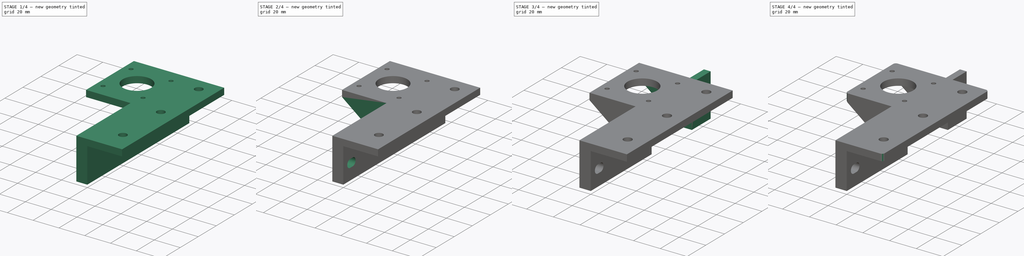
[diagram: build sequence overview — one tinted view per stage of 4, left to right]
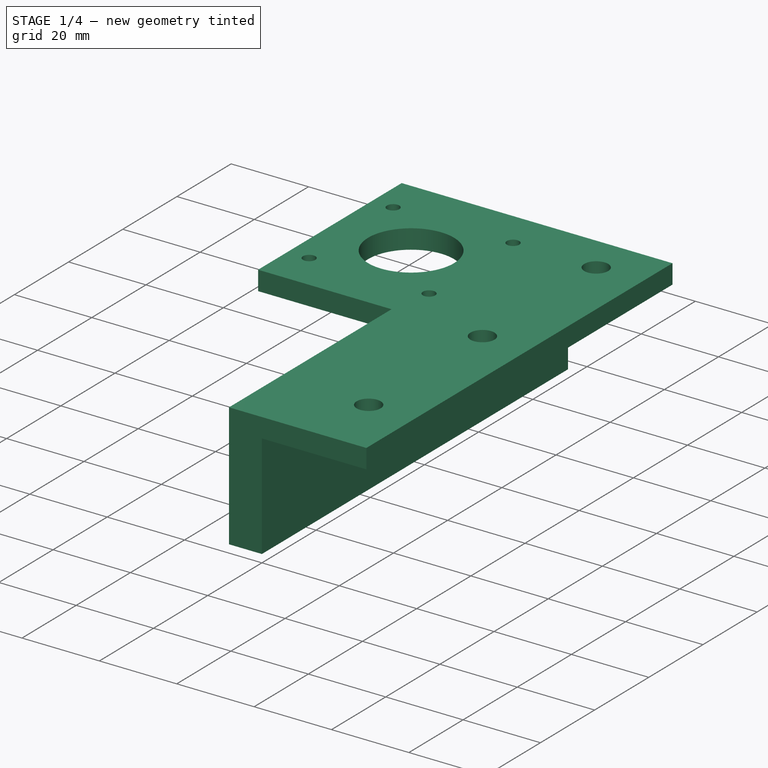
[diagram: stage 1 of 4 — iso view after this stage's code; geometry added in this stage tinted green]
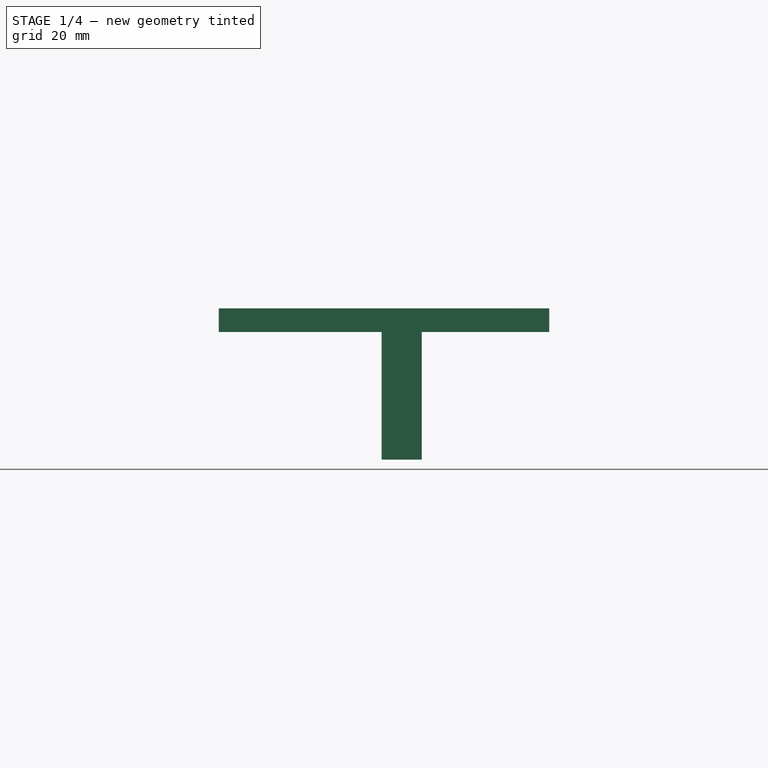
[diagram: stage 1 of 4 — front view after this stage's code; geometry added in this stage tinted green]
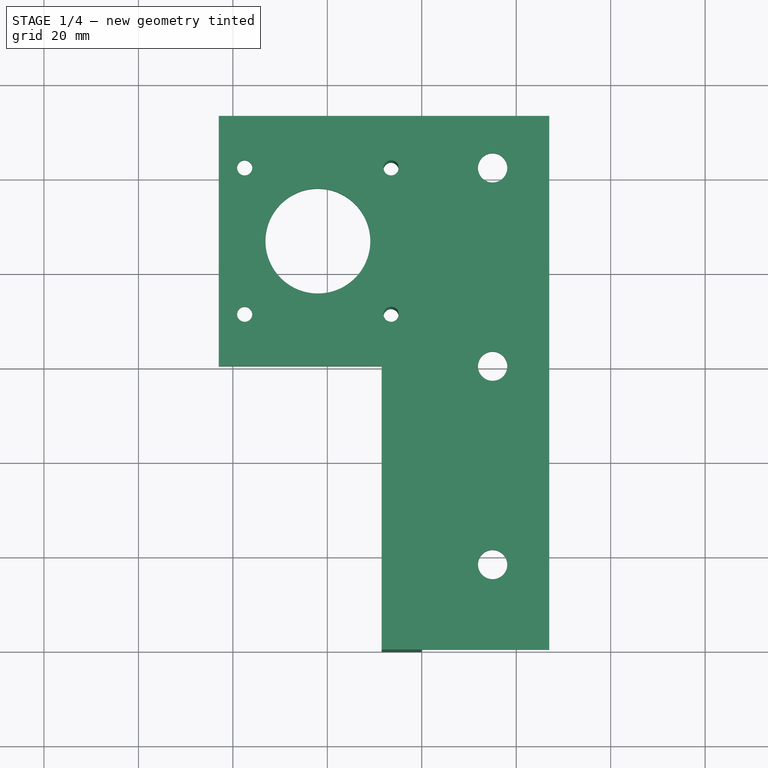
[diagram: stage 1 of 4 — top view after this stage's code; geometry added in this stage tinted green]
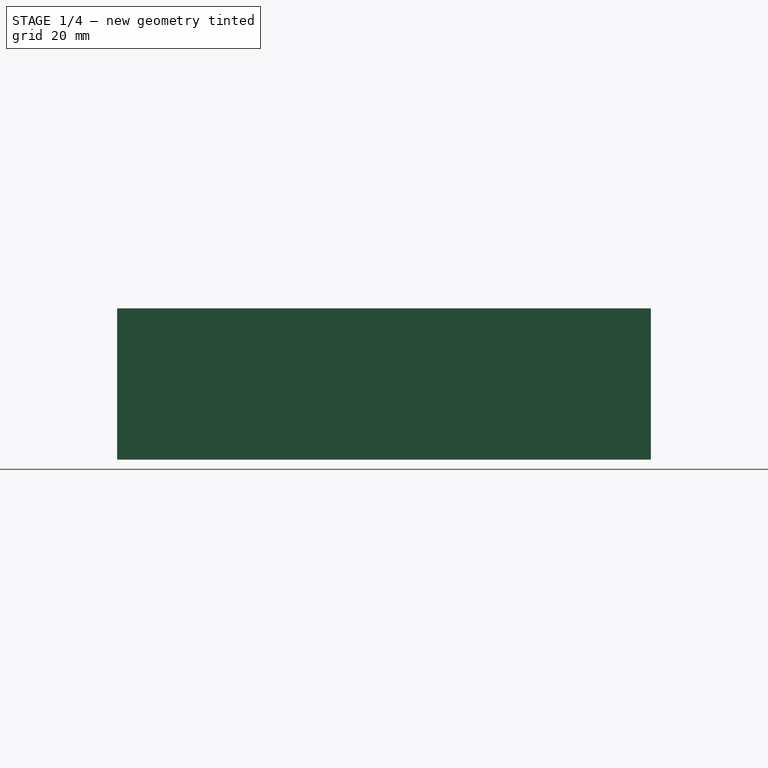
[diagram: stage 1 of 4 — right view after this stage's code; geometry added in this stage tinted green]
FCSTD DOCUMENT  (FreeCAD 0.19R18353 (Git))
Label: GearHolder_003
License: CreativeCommons Attribution
LicenseURL: http://creativecommons.org/licenses/by/4.0/
objects: Sketcher::SketchObject×8, PartDesign::Pad×4, PartDesign::Pocket×4, PartDesign::Fillet×1, PartDesign::Body×1
note: 26 computed .brp shape members not serialized (recipe doc carries the construction recipe); baked Part::Feature solids carry a one-line shape summary decoded from their .brp

FEATURE [Sketcher::SketchObject] Sketch
  MapMode = 5
  Placement = pos=(0,0,0) rot=(1,0,0;1.5708rad)
  Support = -> [XZ_Plane]
  sketch-geometry (8):
    g0: LineSegment StartX=-43 StartY=5 StartZ=0 EndX=27 EndY=5 EndZ=0
    g1: LineSegment StartX=27 StartY=5 StartZ=0 EndX=27 EndY=0 EndZ=0
    g2: LineSegment StartX=27 StartY=0 StartZ=0 EndX=0 EndY=0 EndZ=0
    g3: LineSegment StartX=0 StartY=0 StartZ=0 EndX=0 EndY=-27 EndZ=0
    g4: LineSegment StartX=0 StartY=-27 StartZ=0 EndX=-8.5 EndY=-27 EndZ=0
    g5: LineSegment StartX=-8.5 StartY=-27 StartZ=0 EndX=-8.5 EndY=0 EndZ=0
    g6: LineSegment StartX=-8.5 StartY=0 StartZ=0 EndX=-43 EndY=0 EndZ=0
    g7: LineSegment StartX=-43 StartY=0 StartZ=0 EndX=-43 EndY=5 EndZ=0
  constraints (23):
    c: Horizontal(g0)
    c: Coincident(g0,g1)
    c: Coincident(g1,g2)
    c: Horizontal(g2)
    c: Coincident(g2,g3)
    c: Coincident(g3,g4)
    c: Horizontal(g4)
    c: Coincident(g4,g5)
    c: Vertical(g5)
    c: Coincident(g5,g6)
    c: Horizontal(g6)
    c: Coincident(g6,g7)
    c: Vertical(g7)
    c: Coincident(g7,g0)
    c: Vertical(g1)
    c: Vertical(g3)
    c: Horizontal(g2,g5)
    c: Equal(g3,g2)
    c: Coincident(g2,g-1)
    c: DistanceX(g2,g1) = 27
    c: DistanceX(g6,g2) = 43
    c: DistanceX(g5,g2) = 8.5
    c: DistanceY(g1,g0) = 5
FEATURE [PartDesign::Pad] Pad
  Length = 60
  Length2 = 53
  Placement = pos=(0,0,0) rot=(1,0,0;1.5708rad)
  Profile = -> Sketch
  Refine = true
  Type = 4
  expr: Length2 = 5 + 43 + 5
  expr: Length = 55 + 5
FEATURE [Sketcher::SketchObject] Sketch001
  ExternalGeometry = -> [Pad]
  MapMode = 5
  Support = -> [XY_Plane]
  expr: Constraints[2] = 5 + 43 / 2
  sketch-geometry (16):
    g0: Circle CenterX=-22 CenterY=26.5 CenterZ=0 NormalX=0 NormalY=0 NormalZ=1 AngleXU=0 Radius=11.1
    g1: LineSegment StartX=-43 StartY=0 StartZ=0 EndX=-8.5 EndY=0 EndZ=0
    g2: LineSegment StartX=-8.5 StartY=0 StartZ=0 EndX=-8.5 EndY=-60 EndZ=0
    g3: LineSegment StartX=-8.5 StartY=-60 StartZ=0 EndX=-43 EndY=-60 EndZ=0
    g4: LineSegment StartX=-43 StartY=-60 StartZ=0 EndX=-43 EndY=0 EndZ=0
    g5: Circle CenterX=15 CenterY=42 CenterZ=0 NormalX=0 NormalY=0 NormalZ=1 AngleXU=0 Radius=3.1
    g6: Circle CenterX=15 CenterY=-42 CenterZ=0 NormalX=0 NormalY=0 NormalZ=1 AngleXU=0 Radius=3.1
    g7: Circle CenterX=15 CenterY=-7e-16 CenterZ=0 NormalX=0 NormalY=0 NormalZ=1 AngleXU=0 Radius=3.1
    g8: LineSegment [constr] StartX=-37.5 StartY=42 StartZ=0 EndX=-6.5 EndY=42 EndZ=0
    g9: LineSegment [constr] StartX=-6.5 StartY=42 StartZ=0 EndX=-6.5 EndY=11 EndZ=0
    g10: LineSegment [constr] StartX=-6.5 StartY=11 StartZ=0 EndX=-37.5 EndY=11 EndZ=0
    g11: LineSegment [constr] StartX=-37.5 StartY=11 StartZ=0 EndX=-37.5 EndY=42 EndZ=0
    g12: Circle CenterX=-37.5 CenterY=42 CenterZ=0 NormalX=0 NormalY=0 NormalZ=1 AngleXU=0 Radius=1.6
    g13: Circle CenterX=-6.5 CenterY=42 CenterZ=0 NormalX=0 NormalY=0 NormalZ=1 AngleXU=0 Radius=1.6
    g14: Circle CenterX=-6.5 CenterY=11 CenterZ=0 NormalX=0 NormalY=0 NormalZ=1 AngleXU=0 Radius=1.6
    g15: Circle CenterX=-37.5 CenterY=11 CenterZ=0 NormalX=0 NormalY=0 NormalZ=1 AngleXU=0 Radius=1.6
  constraints (39):
    c: DistanceX(g0,g-1) = 22
    c: Diameter(g0) = 22.2
    c: DistanceY(g-1,g0) = 26.5
    c: Coincident(g1,g2)
    c: Coincident(g2,g3)
    c: Coincident(g3,g4)
    c: Coincident(g4,g1)
    c: Horizontal(g1)
    c: Vertical(g2)
    c: Vertical(g4)
    c: Coincident(g-4,g2)
    c: PointOnObject(g1,g-1)
    c: Coincident(g3,g-3)
    c: Symmetric(g6,g5,g-1)
    c: Diameter(g6) = 6.2
    c: Equal(g6,g5)
    c: Equal(g7,g6)
    c: Symmetric(g5,g6,g7)
    c: DistanceX(g-1,g7) = 15
    c: Coincident(g8,g9)
    c: Coincident(g9,g10)
    c: Coincident(g10,g11)
    c: Coincident(g11,g8)
    c: Horizontal(g8)
    c: Horizontal(g10)
    c: Vertical(g9)
    c: Vertical(g11)
    c: Equal(g9,g8)
    c: DistanceX(g8,g8) = 31
    c: Symmetric(g8,g9,g0)
    c: Equal(g12,g15)
    c: Equal(g15,g14)
    c: Equal(g14,g13)
    c: Diameter(g12) = 3.2
    c: Coincident(g12,g8)
    c: Coincident(g13,g8)
    c: Coincident(g14,g9)
    c: Coincident(g15,g10)
    c: Horizontal(g5,g13)
FEATURE [PartDesign::Pocket] Pocket
  BaseFeature = -> Pad
  Length = 5
  Length2 = 100
  Midplane = true
  Placement = pos=(0,0,0) rot=(1,0,0;1.5708rad)
  Profile = -> Sketch001
  Refine = true
  Type = 1
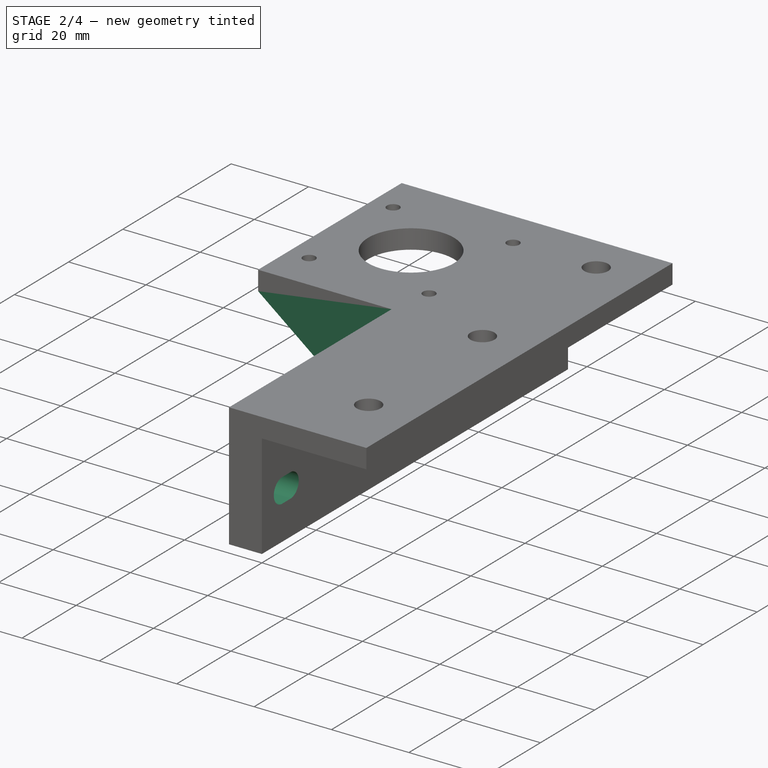
[diagram: stage 2 of 4 — iso view after this stage's code; geometry added in this stage tinted green]
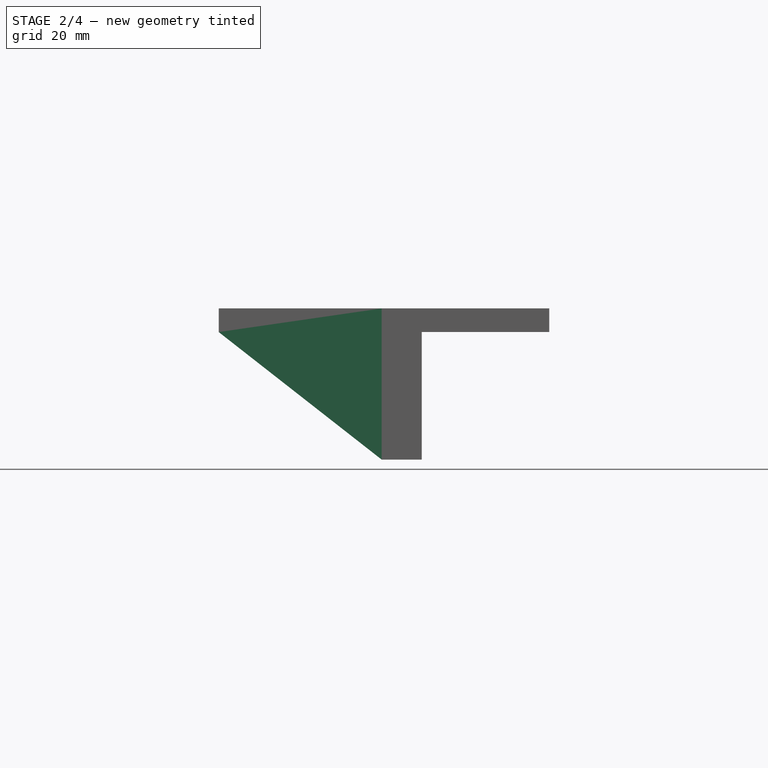
[diagram: stage 2 of 4 — front view after this stage's code; geometry added in this stage tinted green]
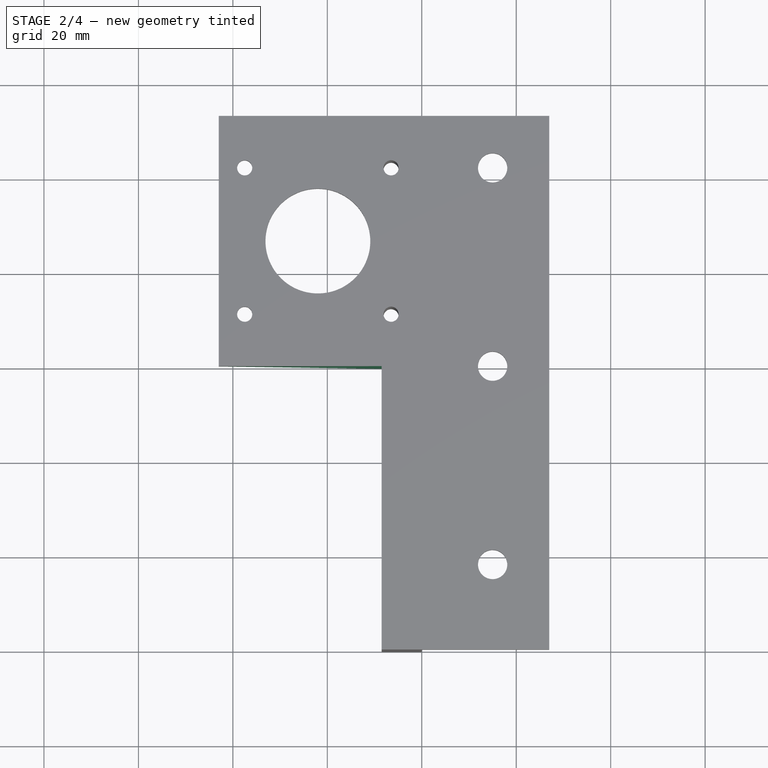
[diagram: stage 2 of 4 — top view after this stage's code; geometry added in this stage tinted green]
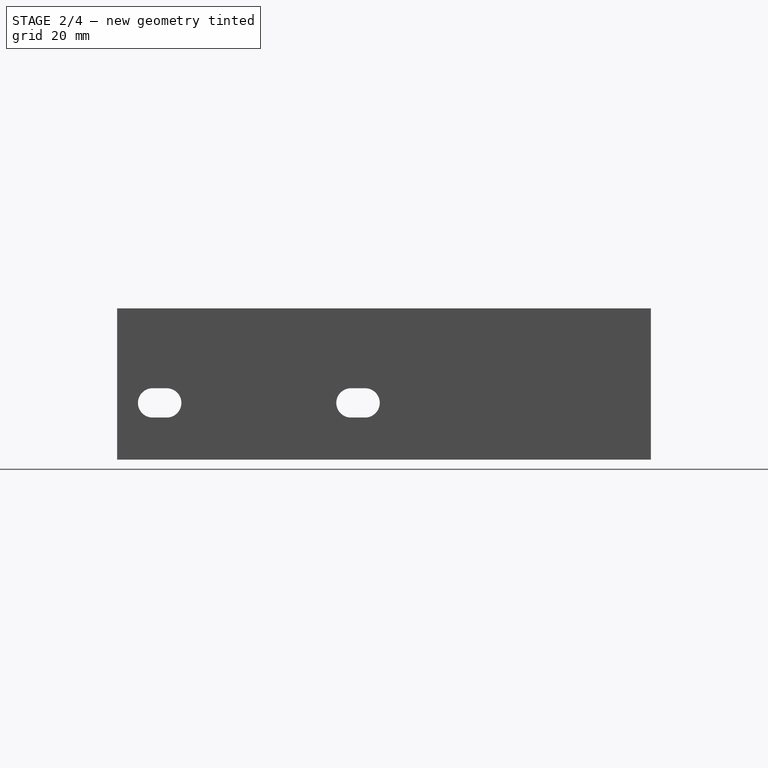
[diagram: stage 2 of 4 — right view after this stage's code; geometry added in this stage tinted green]
FEATURE [Sketcher::SketchObject] Sketch002
  MapMode = 5
  Placement = pos=(0,0,0) rot=(0.57735,0.57735,0.57735;2.0944rad)
  Support = -> [YZ_Plane]
  expr: Constraints[0] = 60 / 2
  sketch-geometry (11):
    g0: GeomPoint X=-30 Y=-15 Z=0
    g1: ArcOfCircle CenterX=-52.5 CenterY=-15 CenterZ=0 NormalX=0 NormalY=0 NormalZ=1 AngleXU=0 Radius=3.1 StartAngle=1.5708 EndAngle=4.71239
    g2: ArcOfCircle CenterX=-49.5 CenterY=-15 CenterZ=0 NormalX=0 NormalY=0 NormalZ=1 AngleXU=0 Radius=3.1 StartAngle=4.71239 EndAngle=7.85398
    g3: LineSegment StartX=-52.5 StartY=-18.1 StartZ=0 EndX=-49.5 EndY=-18.1 EndZ=0
    g4: LineSegment StartX=-52.5 StartY=-11.9 StartZ=0 EndX=-49.5 EndY=-11.9 EndZ=0
    g5: ArcOfCircle CenterX=-10.5 CenterY=-15 CenterZ=0 NormalX=0 NormalY=0 NormalZ=1 AngleXU=0 Radius=3.1 StartAngle=1.5708 EndAngle=4.71239
    g6: ArcOfCircle CenterX=-7.5 CenterY=-15 CenterZ=0 NormalX=0 NormalY=0 NormalZ=1 AngleXU=0 Radius=3.1 StartAngle=4.71239 EndAngle=7.85398
    g7: LineSegment StartX=-10.5 StartY=-18.1 StartZ=0 EndX=-7.5 EndY=-18.1 EndZ=0
    g8: LineSegment StartX=-10.5 StartY=-11.9 StartZ=0 EndX=-7.5 EndY=-11.9 EndZ=0
    g9: GeomPoint X=-9 Y=-15 Z=0
    g10: GeomPoint X=-51 Y=-15 Z=0
  constraints (23):
    c: DistanceX(g0,g-1) = 30
    c: DistanceY(g0,g-1) = 15
    c: Tangent(g1,g4) = 1.5708
    c: Tangent(g1,g3) = -1.5708
    c: Tangent(g3,g2) = -1.5708
    c: Tangent(g4,g2) = 1.5708
    c: Horizontal(g3)
    c: Equal(g1,g2)
    c: Tangent(g5,g8) = 1.5708
    c: Tangent(g5,g7) = -1.5708
    c: Tangent(g7,g6) = -1.5708
    c: Tangent(g8,g6) = 1.5708
    c: Horizontal(g7)
    c: Equal(g5,g6)
    c: Equal(g2,g6)
    c: Diameter(g2) = 6.2
    c: DistanceX(g5,g6) = 3
    c: DistanceX(g1,g2) = 3
    c: Symmetric(g2,g1,g10)
    c: Symmetric(g5,g6,g9)
    c: Symmetric(g9,g10,g0)
    c: Horizontal(g10,g9)
    c: DistanceX(g10,g9) = 42
FEATURE [PartDesign::Pocket] Pocket001
  BaseFeature = -> Pocket
  Length = 5
  Length2 = 100
  Placement = pos=(0,0,0) rot=(1,0,0;1.5708rad)
  Profile = -> Sketch002
  Refine = true
  Type = 1
FEATURE [Sketcher::SketchObject] Sketch003
  ExternalGeometry = -> [Pocket001]
  MapMode = 5
  Placement = pos=(0,0,0) rot=(1,0,0;1.5708rad)
  Support = -> [XZ_Plane]
  sketch-geometry (5):
    g0: LineSegment StartX=-43 StartY=5 StartZ=0 EndX=-43 EndY=0 EndZ=0
    g1: LineSegment StartX=-43 StartY=0 StartZ=0 EndX=-8.5 EndY=-27 EndZ=0
    g2: LineSegment StartX=-8.5 StartY=-27 StartZ=0 EndX=0 EndY=-27 EndZ=0
    g3: LineSegment StartX=0 StartY=-27 StartZ=0 EndX=0 EndY=5 EndZ=0
    g4: LineSegment StartX=0 StartY=5 StartZ=0 EndX=-43 EndY=5 EndZ=0
  constraints (7):
    c: Coincident(g0,g1)
    c: Coincident(g1,g2)
    c: Coincident(g2,g3)
    c: Vertical(g3)
    c: Coincident(g3,g4)
    c: Horizontal(g4)
    c: Coincident(g0,g4)
FEATURE [PartDesign::Pad] Pad001
  BaseFeature = -> Pocket001
  Length = 5
  Length2 = 100
  Placement = pos=(0,0,0) rot=(1,0,0;1.5708rad)
  Profile = -> Sketch003
  Refine = true
  Reversed = true
  Type = 0
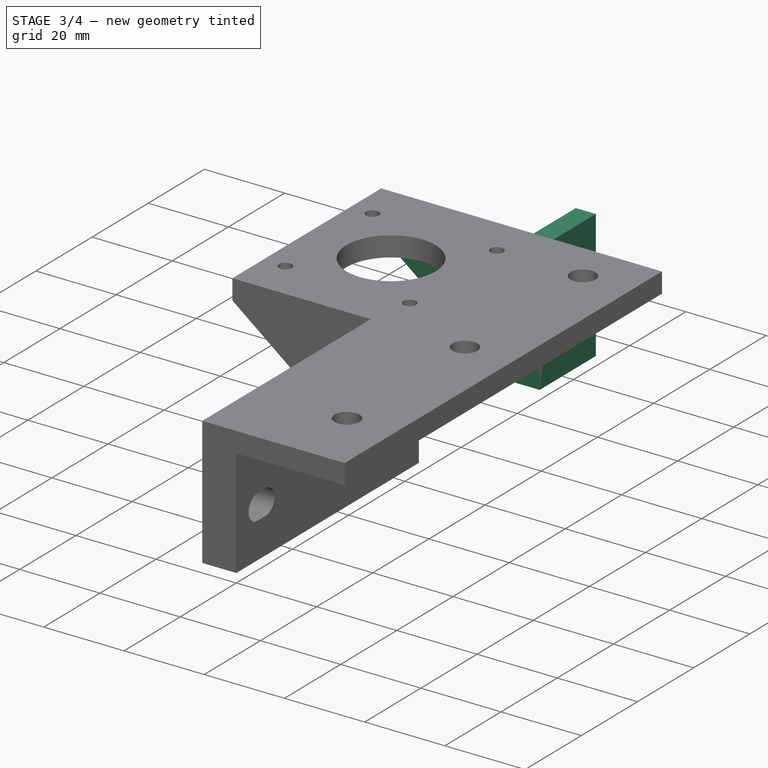
[diagram: stage 3 of 4 — iso view after this stage's code; geometry added in this stage tinted green]
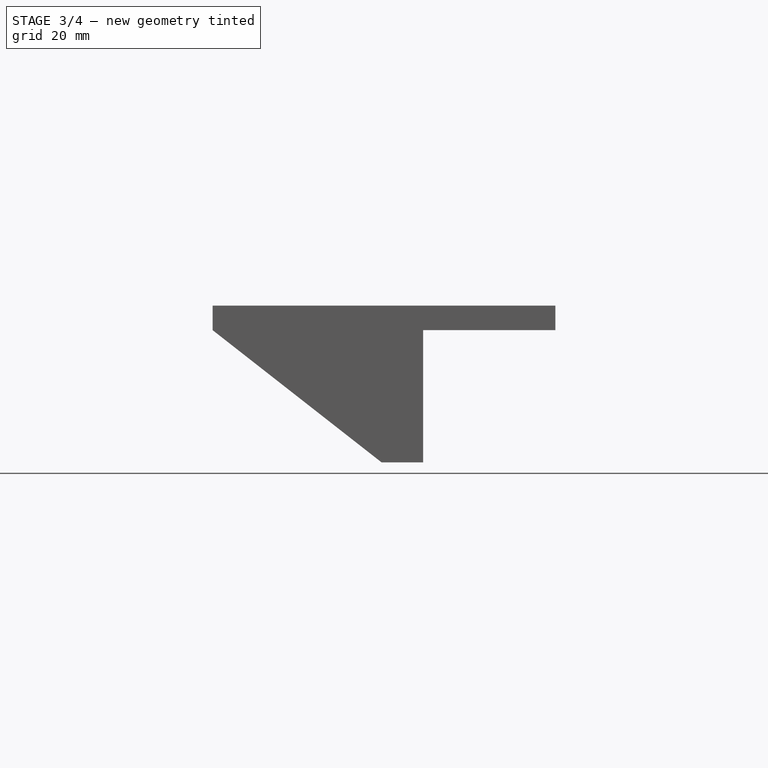
[diagram: stage 3 of 4 — front view after this stage's code; geometry added in this stage tinted green]
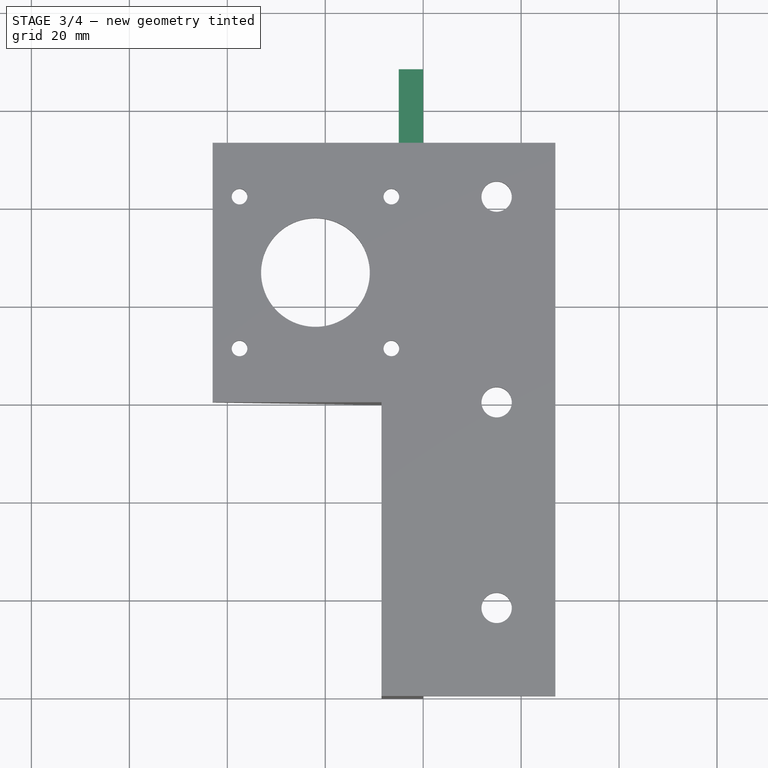
[diagram: stage 3 of 4 — top view after this stage's code; geometry added in this stage tinted green]
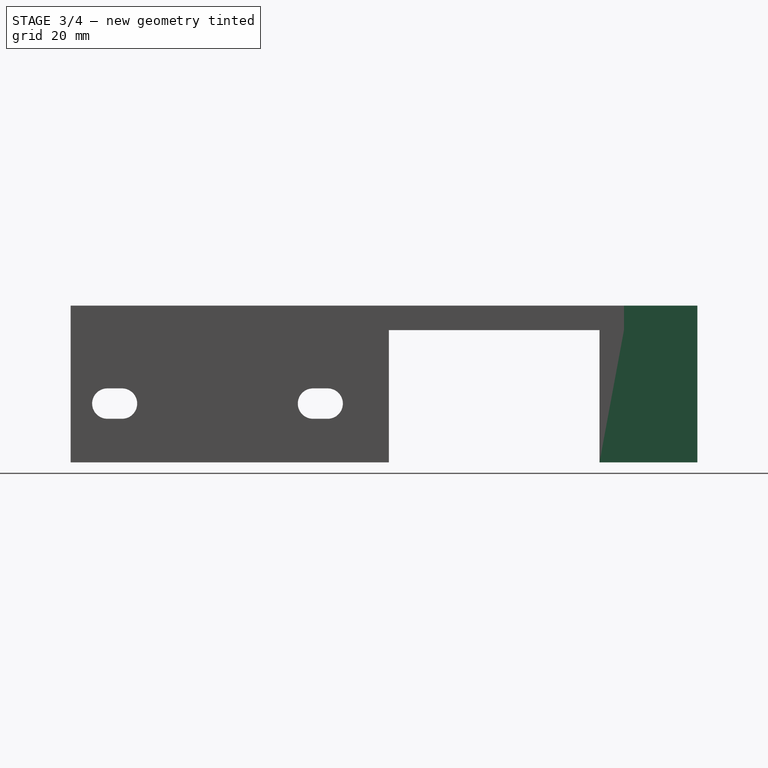
[diagram: stage 3 of 4 — right view after this stage's code; geometry added in this stage tinted green]
FEATURE [Sketcher::SketchObject] Sketch004
  ExternalGeometry = -> [Pad001]
  MapMode = 5
  Placement = pos=(0,53,-2.34e-14) rot=(-1,0,0;1.5708rad)
  Support = -> [Pad001]
  sketch-geometry (5):
    g0: LineSegment StartX=-43 StartY=-5 StartZ=0 EndX=0 EndY=-5 EndZ=0
    g1: LineSegment StartX=0 StartY=-5 StartZ=0 EndX=0 EndY=27 EndZ=0
    g2: LineSegment StartX=0 StartY=27 StartZ=0 EndX=-8.5 EndY=27 EndZ=0
    g3: LineSegment StartX=-8.5 StartY=27 StartZ=0 EndX=-43 EndY=-3.6e-15 EndZ=0
    g4: LineSegment StartX=-43 StartY=-3.6e-15 StartZ=0 EndX=-43 EndY=-5 EndZ=0
  constraints (12):
    c: Horizontal(g0)
    c: Coincident(g0,g1)
    c: Vertical(g1)
    c: Coincident(g1,g2)
    c: Coincident(g2,g3)
    c: Coincident(g3,g4)
    c: Vertical(g4)
    c: Coincident(g4,g0)
    c: Coincident(g0,g-3)
    c: Coincident(g1,g-4)
    c: Coincident(g2,g-4)
    c: Horizontal(g3,g-1)
FEATURE [PartDesign::Pad] Pad002
  BaseFeature = -> Pad001
  Length = 5
  Length2 = 100
  Placement = pos=(0,0,0) rot=(1,0,0;1.5708rad)
  Profile = -> Sketch004
  Refine = true
  Reversed = true
  Type = 0
FEATURE [Sketcher::SketchObject] Sketch005
  ExternalGeometry = -> [Pad002]
  MapMode = 5
  Placement = pos=(0,0,0) rot=(0.57735,0.57735,0.57735;2.0944rad)
  Support = -> [YZ_Plane]
  sketch-geometry (4):
    g0: LineSegment StartX=5 StartY=-7.1e-15 StartZ=0 EndX=48 EndY=-7.1e-15 EndZ=0
    g1: LineSegment StartX=48 StartY=-7.1e-15 StartZ=0 EndX=48 EndY=-27 EndZ=0
    g2: LineSegment StartX=48 StartY=-27 StartZ=0 EndX=5 EndY=-27 EndZ=0
    g3: LineSegment StartX=5 StartY=-27 StartZ=0 EndX=5 EndY=-7.1e-15 EndZ=0
  constraints (8):
    c: Coincident(g0,g1)
    c: Coincident(g1,g2)
    c: Coincident(g2,g3)
    c: Coincident(g3,g0)
    c: Horizontal(g0)
    c: Horizontal(g2)
    c: Vertical(g1)
    c: Vertical(g3)
FEATURE [PartDesign::Pocket] Pocket002
  BaseFeature = -> Pad002
  Length = 5
  Length2 = 100
  Placement = pos=(0,0,0) rot=(1,0,0;1.5708rad)
  Profile = -> Sketch005
  Refine = true
  Type = 1
FEATURE [Sketcher::SketchObject] Sketch006
  ExternalGeometry = -> [Pocket002]
  MapMode = 5
  Placement = pos=(-3e-16,53,-2.38e-14) rot=(-1,0,0;1.5708rad)
  Support = -> [Pocket002]
  sketch-geometry (4):
    g0: LineSegment StartX=-5 StartY=27 StartZ=0 EndX=0 EndY=27 EndZ=0
    g1: LineSegment StartX=0 StartY=27 StartZ=0 EndX=0 EndY=-5 EndZ=0
    g2: LineSegment StartX=0 StartY=-5 StartZ=0 EndX=-5 EndY=-5 EndZ=0
    g3: LineSegment StartX=-5 StartY=-5 StartZ=0 EndX=-5 EndY=27 EndZ=0
  constraints (11):
    c: Coincident(g0,g1)
    c: Coincident(g1,g2)
    c: Coincident(g2,g3)
    c: Coincident(g3,g0)
    c: Horizontal(g0)
    c: Horizontal(g2)
    c: Vertical(g1)
    c: Vertical(g3)
    c: Coincident(g0,g-4)
    c: Horizontal(g1,g-3)
    c: DistanceX(g0,g0) = 5
FEATURE [PartDesign::Pad] Pad003
  BaseFeature = -> Pocket002
  Length = 15
  Length2 = 100
  Placement = pos=(0,0,0) rot=(1,0,0;1.5708rad)
  Profile = -> Sketch006
  Refine = true
  Type = 0
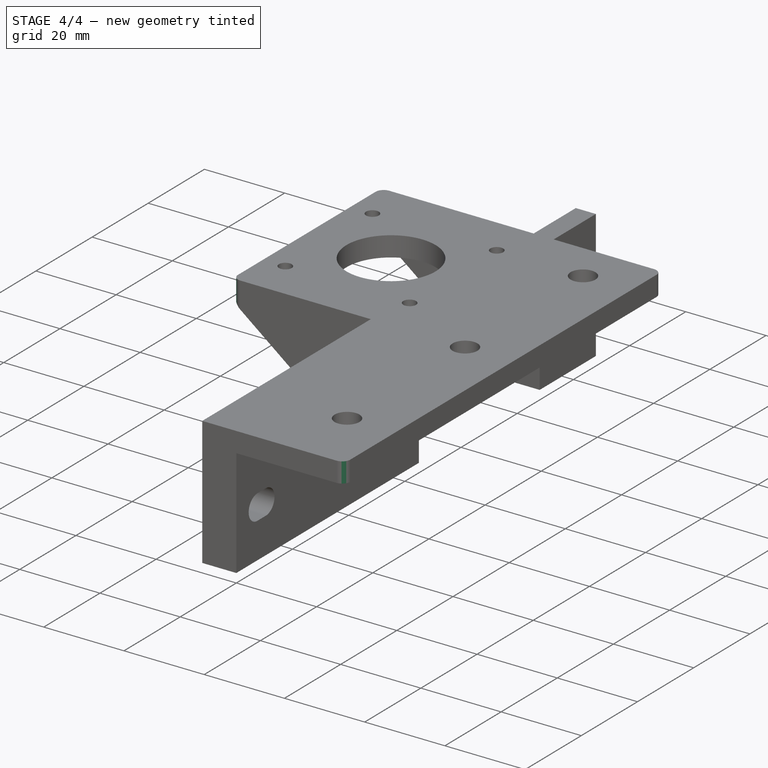
[diagram: stage 4 of 4 — iso view after this stage's code; geometry added in this stage tinted green]
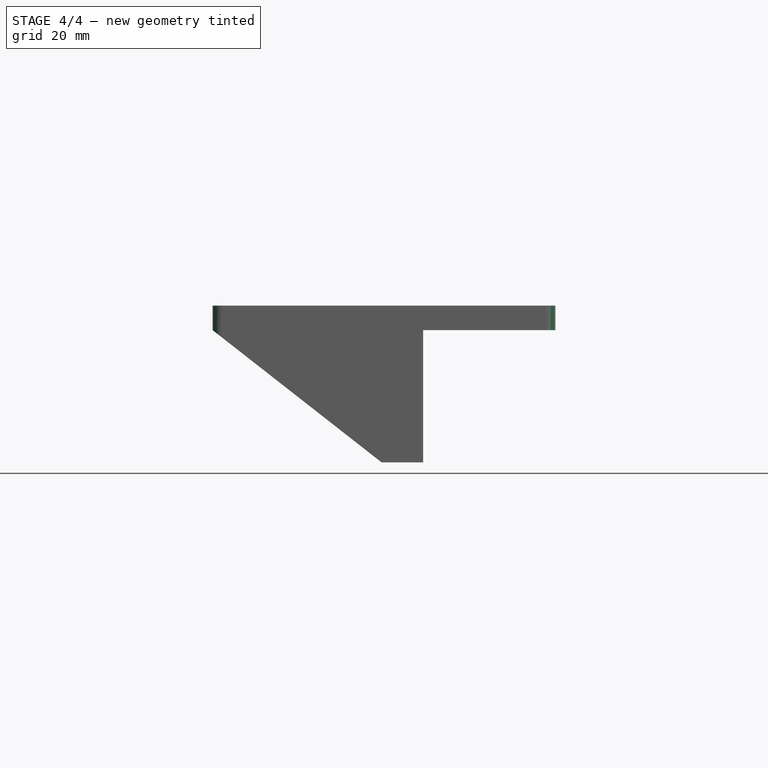
[diagram: stage 4 of 4 — front view after this stage's code; geometry added in this stage tinted green]
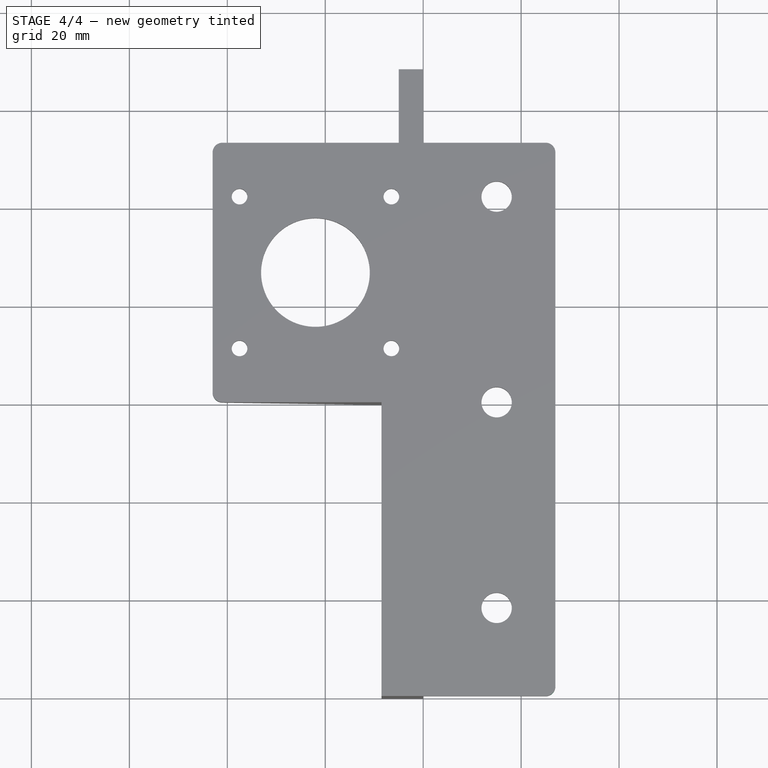
[diagram: stage 4 of 4 — top view after this stage's code; geometry added in this stage tinted green]
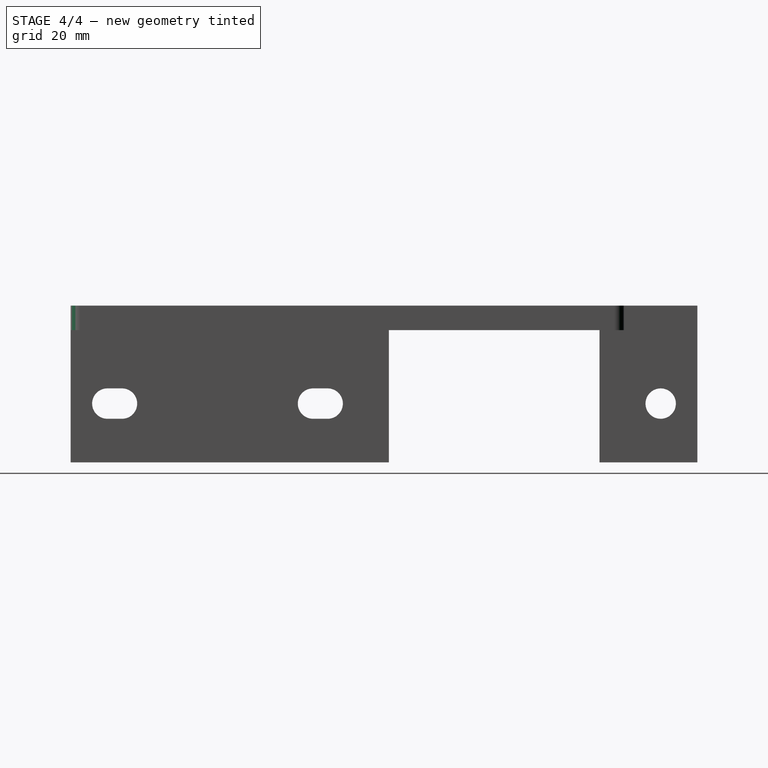
[diagram: stage 4 of 4 — right view after this stage's code; geometry added in this stage tinted green]
FEATURE [Sketcher::SketchObject] Sketch007
  ExternalGeometry = -> [Pad003]
  MapMode = 5
  Placement = pos=(0,0,0) rot=(0.57735,0.57735,0.57735;2.0944rad)
  Support = -> [YZ_Plane]
  expr: Constraints[1] = 15 / 2
  sketch-geometry (1):
    g0: Circle CenterX=60.5 CenterY=-15 CenterZ=0 NormalX=0 NormalY=0 NormalZ=1 AngleXU=0 Radius=3.1
  constraints (3):
    c: Diameter(g0) = 6.2
    c: DistanceX(g-3,g0) = 7.5
    c: DistanceY(g0,g-1) = 15
FEATURE [PartDesign::Pocket] Pocket003
  BaseFeature = -> Pad003
  Length = 5
  Length2 = 100
  Placement = pos=(0,0,0) rot=(1,0,0;1.5708rad)
  Profile = -> Sketch007
  Refine = true
  Type = 1
FEATURE [PartDesign::Fillet] Fillet
  Base = -> Pocket003 [Edge60,Edge59,Edge13,Edge10]
  BaseFeature = -> Pocket003
  Placement = pos=(0,0,0) rot=(1,0,0;1.5708rad)
  Radius = 2
FEATURE [PartDesign::Body] Body
  Group = -> [Sketch,Pad,Sketch001,Pocket,Sketch002,Pocket001,Sketch003,Pad001,Sketch004,Pad002,Sketch005,Pocket002,Sketch006,Pad003,Sketch007,Pocket003,Fillet]
  Origin = -> Origin
  Tip = -> Fillet
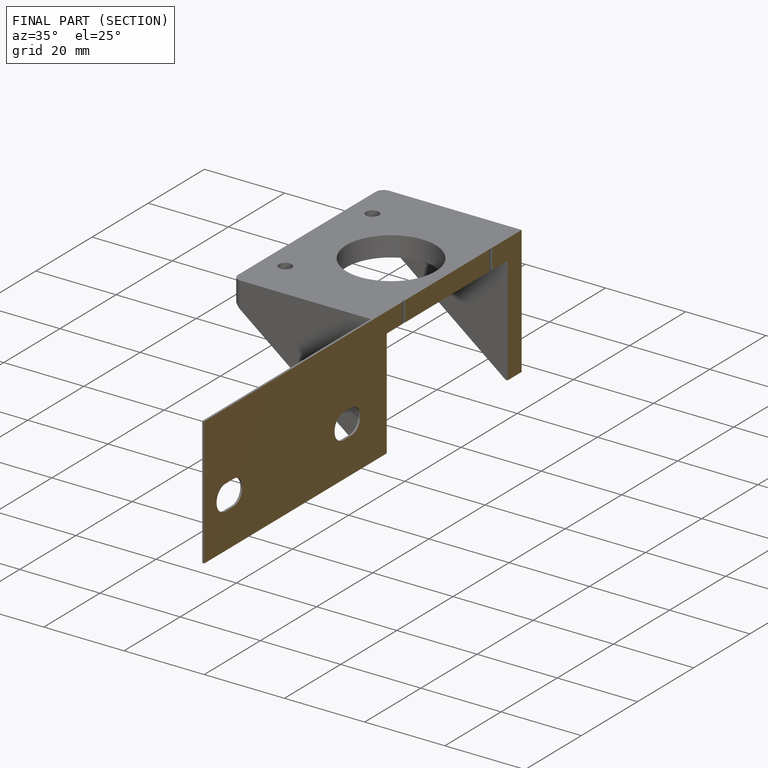
[diagram: finished part — half-section view (interior)]
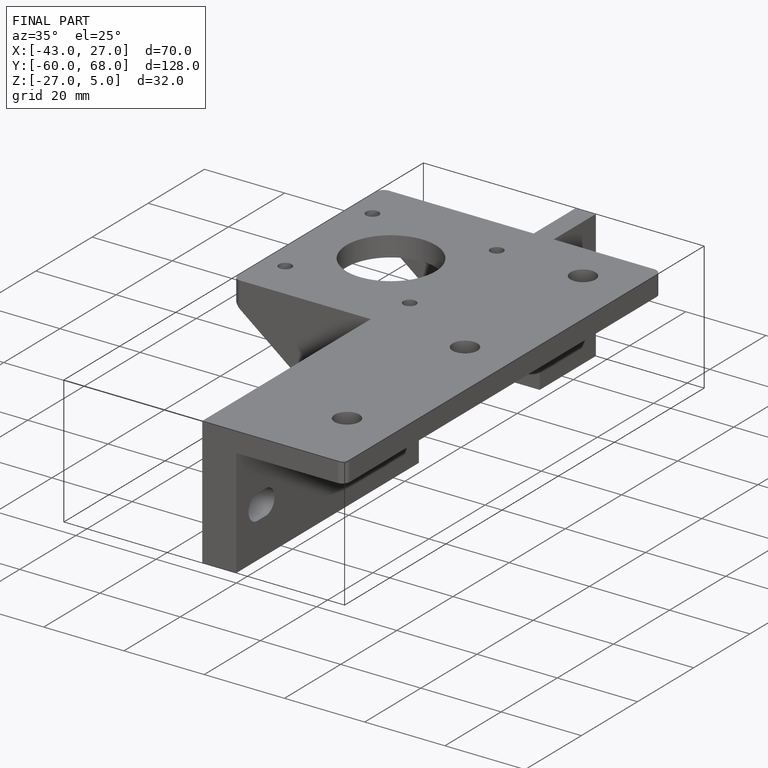
[diagram: finished part — iso view with bounding-box wireframe]
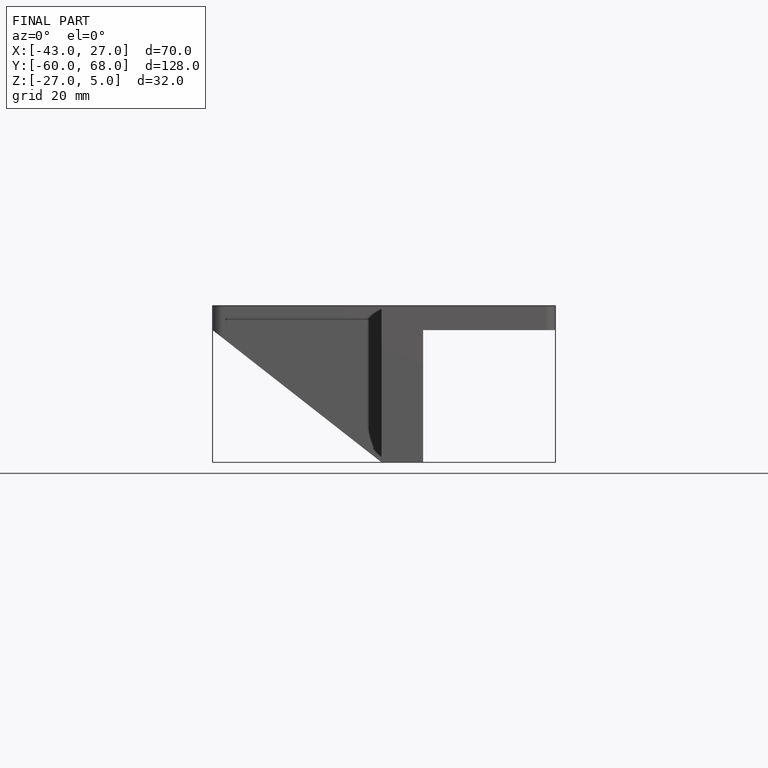
[diagram: finished part — front view with bounding-box wireframe]
